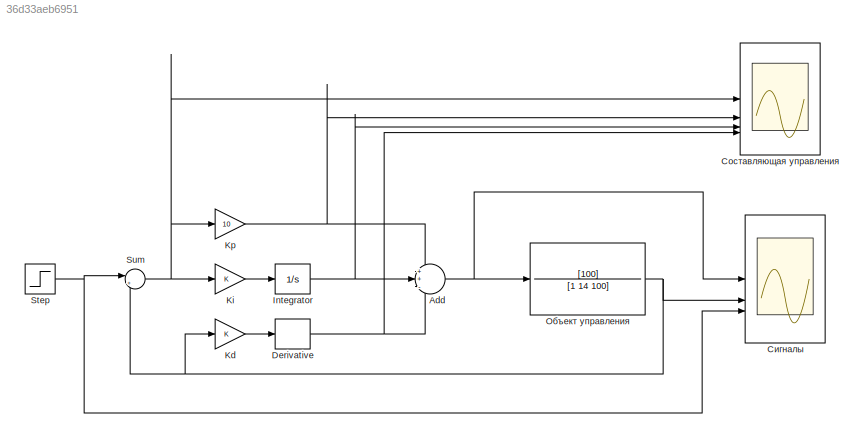
MODEL slx_36d33aeb6951
KIND model
CONFIG AbsTol = auto
CONFIG EnableMultiTasking = off
CONFIG FixedStep = auto
CONFIG MaxStep = auto
CONFIG MinStep = auto
CONFIG RelTol = 1e-3
CONFIG SampleTimeConstraint = Unconstrained
CONFIG SolverName = VariableStepAuto
CONFIG StartTime = 0.0
CONFIG StopTime = 10
BLOCK [Sum] Add
  Inputs = ++-
BLOCK [Derivative] Derivative
BLOCK [Integrator] Integrator
BLOCK [Gain] Kd
BLOCK [Gain] Ki
BLOCK [Gain] Kp
  Gain = 10
BLOCK [Step] Step
  SampleTime = 0
BLOCK [Sum] Sum
  Inputs = |+-
BLOCK [TransferFcn] Объект управления
  Denominator = [1 14 100]
  Numerator = [100]
BLOCK [Scope] Сигналы
  Floating = off
  NumInputPorts = 3
  ScopeSpecificationString = Simulink.scopes.TimeScopeBlockCfg('CurrentConfiguration', extmgr.ConfigurationSet(extmgr.Configuration('Core','General UI',true,'FigureColor',[1 1 1]),extmgr.Configuration('Core','Source UI',true),extmgr.Configuration('Sources','WiredSimulink',true),extmgr.Configuration('Visuals','Time Domain',true,'SerializedDisplays',{struct('MinYLimReal','-0.5','MaxYLimReal','1.5','YLabelReal','Amplitude','MinY...<+3274ch>
BLOCK [Scope] Составляющая управления
  Floating = off
  NumInputPorts = 4
  ScopeSpecificationString = Simulink.scopes.TimeScopeBlockCfg('CurrentConfiguration', extmgr.ConfigurationSet(extmgr.Configuration('Core','General UI',true,'FigureColor',[1 1 1],'DisplayFullSourceName',true),extmgr.Configuration('Core','Source UI',true),extmgr.Configuration('Sources','WiredSimulink',true,'DataLoggingVariableName','ScopeData1'),extmgr.Configuration('Visuals','Time Domain',true,'SerializedDisplays',{struct('Mi...<+4175ch>
NET Add:1 -> Объект управления:1, Сигналы:1
NET Derivative:1 -> Add:3, Составляющая управления:4
NET Integrator:1 -> Add:2, Составляющая управления:3
LINE Kd:1 -> Derivative:1
LINE Ki:1 -> Integrator:1
NET Kp:1 -> Add:1, Составляющая управления:2
NET Step:1 -> Sum:1, Сигналы:3
NET Sum:1 -> Ki:1, Kp:1, Составляющая управления:1
NET Объект управления:1 -> Kd:1, Sum:2, Сигналы:2
note: NET lines group one-source signal fan-out (src -> all destinations, sorted); 1:1 wires keep LINE
